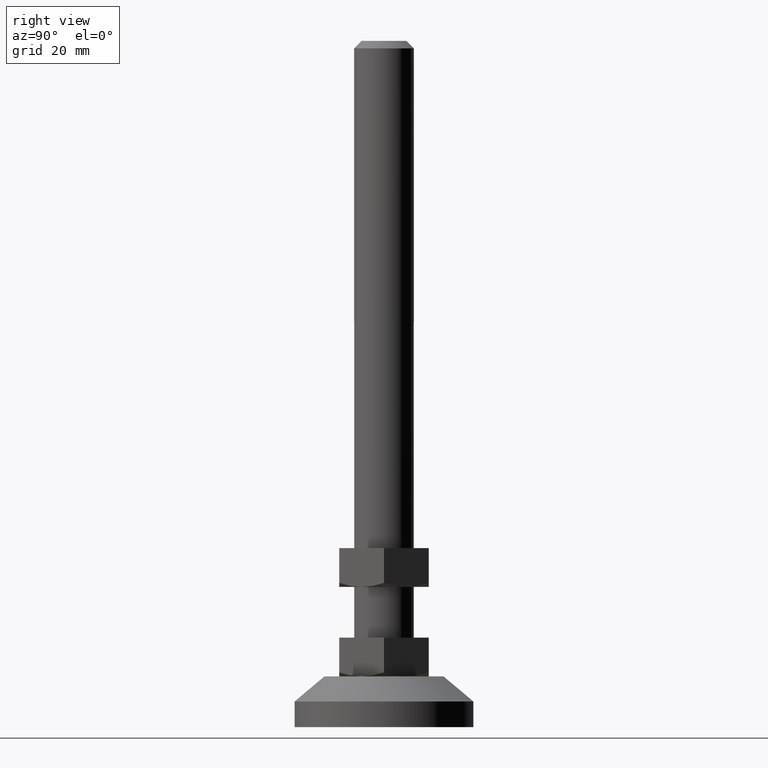
[diagram: clean part render]
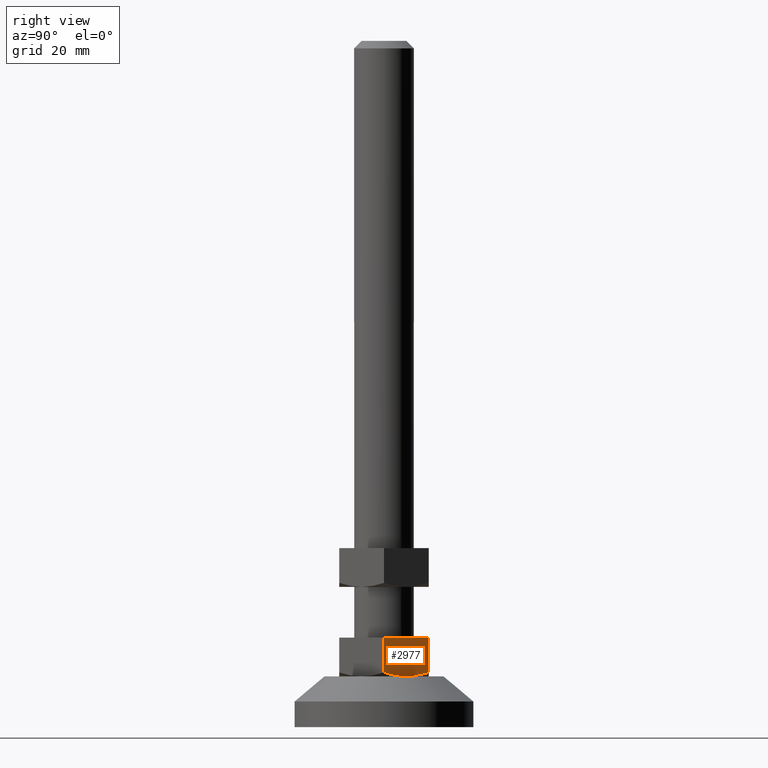
[diagram: same view with one face highlighted and labeled with its STEP entity id]
A machine part, right view. The second image highlights one B-rep face of the part: STEP entity #2977.
In plain terms, the highlighted face is a freeform B-spline surface patch.
Its self-contained STEP definition (entity closure, byte-faithful):
#2782=CARTESIAN_POINT('',(17.300000000000001,0.0,30.0));
#2783=VERTEX_POINT('',#2782);
#2789=CARTESIAN_POINT('',(8.639746000000001,15.0,30.0));
#2790=VERTEX_POINT('',#2789);
#2791=CARTESIAN_POINT('',(8.639746000000001,15.0,30.0));
#2792=CARTESIAN_POINT('',(17.300000000000001,0.0,30.0));
#2793=QUASI_UNIFORM_CURVE('',1,(#2791,#2792),.UNSPECIFIED.,.F.,.U.);
#2794=EDGE_CURVE('',#2790,#2783,#2793,.T.);
#2912=CARTESIAN_POINT('',(17.300000000000001,1.536538E-016,18.339745951230899));
#2913=VERTEX_POINT('',#2912);
#2931=CARTESIAN_POINT('',(17.300000000000001,0.0,30.0));
#2932=CARTESIAN_POINT('',(17.300000000000001,1.536538E-016,18.339745951230899));
#2933=QUASI_UNIFORM_CURVE('',1,(#2931,#2932),.UNSPECIFIED.,.F.,.U.);
#2934=EDGE_CURVE('',#2783,#2913,#2933,.T.);
#2940=CARTESIAN_POINT('',(17.732579670514770,-0.749249970927079,16.352317868025761));
#2941=CARTESIAN_POINT('',(8.207166097199140,15.749250373258439,16.352317868025761));
#2942=CARTESIAN_POINT('',(17.732579670514770,-0.749249970927079,30.649270978006601));
#2943=CARTESIAN_POINT('',(8.207166097199140,15.749250373258439,30.649270978006601));
#2944=B_SPLINE_SURFACE_WITH_KNOTS('',1,1,((#2940,#2942),(#2941,#2943)),.UNSPECIFIED.,.F.,.F.,.U.,(2,2),(2,2),(0.0,19.050827209068778),(0.0,14.296953109980830),.UNSPECIFIED.);
#2945=ORIENTED_EDGE('',*,*,#2934,.T.);
#2946=CARTESIAN_POINT('',(8.639746000000001,15.0,18.345671394023402));
#2947=VERTEX_POINT('',#2946);
#2948=CARTESIAN_POINT('',(17.300000000000001,1.536538E-016,18.339745951230899));
#2949=CARTESIAN_POINT('',(16.592941722767890,1.224660865429820,17.931525664537720));
#2950=CARTESIAN_POINT('',(15.880722203566361,2.458261264219843,17.595166574799951));
#2951=CARTESIAN_POINT('',(14.801235094892681,4.327987790728774,17.245981053792150));
#2952=CARTESIAN_POINT('',(14.439541958482749,4.954458682477309,17.155540189445990));
#2953=CARTESIAN_POINT('',(13.711936844397590,6.214707713426931,17.033398389028530));
#2954=CARTESIAN_POINT('',(13.346021212827759,6.848492181359094,17.001748326998669));
#2955=CARTESIAN_POINT('',(12.885799685170850,7.645619253481179,17.001546577077850));
#2956=CARTESIAN_POINT('',(12.793614645803340,7.805288426061185,17.003465697697159));
#2957=CARTESIAN_POINT('',(12.608961067811620,8.125117806339851,17.011251166375079));
#2958=CARTESIAN_POINT('',(12.516661840701390,8.284984757892708,17.017113104138222));
#2959=CARTESIAN_POINT('',(12.240427566274500,8.763436558082770,17.040486526452199));
#2960=CARTESIAN_POINT('',(12.056912984918879,9.081293138309441,17.063800979005251));
#2961=CARTESIAN_POINT('',(11.508210259183761,10.031674141687271,17.155931109065229));
#2962=CARTESIAN_POINT('',(11.144867414517419,10.661002411966081,17.246985155436391));
#2963=CARTESIAN_POINT('',(10.061320491401830,12.537760743388420,17.598259512653300));
#2964=CARTESIAN_POINT('',(9.347572270797704,13.774008930688920,17.936281682498400));
#2965=CARTESIAN_POINT('',(8.639745999999969,15.000000000000050,18.345671394023071));
#2966=B_SPLINE_CURVE_WITH_KNOTS('',3,(#2948,#2949,#2950,#2951,#2952,#2953,#2954,#2955,#2956,#2957,#2958,#2959,#2960,#2961,#2962,#2963,#2964,#2965),.UNSPECIFIED.,.F.,.U.,(4,2,2,2,2,2,2,2,4),(0.0,0.250000000000000,0.374999999999999,0.499999999999999,0.531249999999999,0.562499999999999,0.624999999999999,0.749999999999999,1.0),.UNSPECIFIED.);
#2967=EDGE_CURVE('',#2913,#2947,#2966,.T.);
#2968=ORIENTED_EDGE('',*,*,#2967,.T.);
#2969=CARTESIAN_POINT('',(8.639746000000001,15.0,30.0));
#2970=CARTESIAN_POINT('',(8.639746000000001,15.0,18.345671394023402));
#2971=QUASI_UNIFORM_CURVE('',1,(#2969,#2970),.UNSPECIFIED.,.F.,.U.);
#2972=EDGE_CURVE('',#2790,#2947,#2971,.T.);
#2973=ORIENTED_EDGE('',*,*,#2972,.F.);
#2974=ORIENTED_EDGE('',*,*,#2794,.T.);
#2975=EDGE_LOOP('',(#2945,#2968,#2973,#2974));
#2976=FACE_OUTER_BOUND('',#2975,.T.);
#2977=ADVANCED_FACE('',(#2976),#2944,.T.);